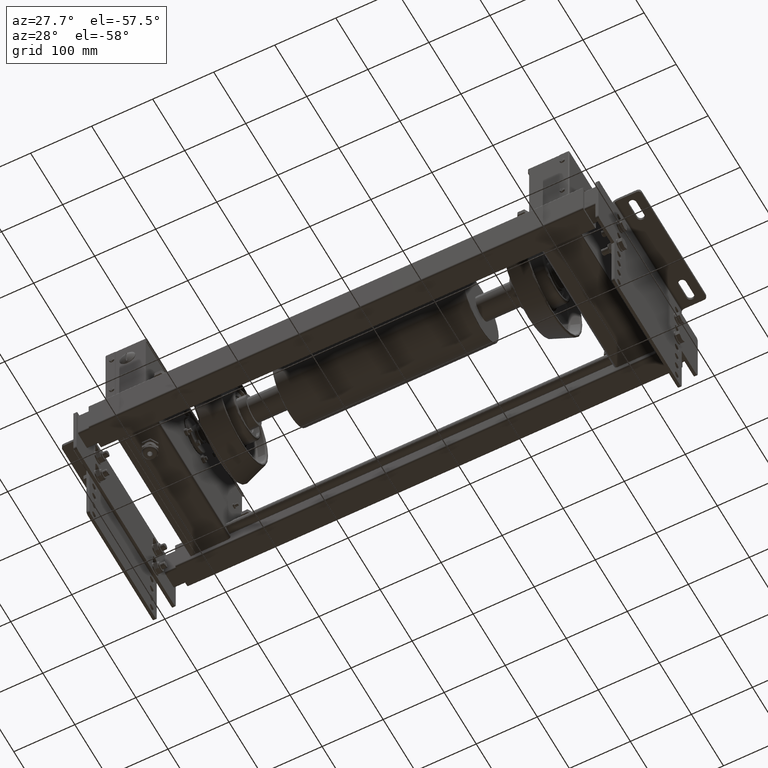
[diagram: clean part render]
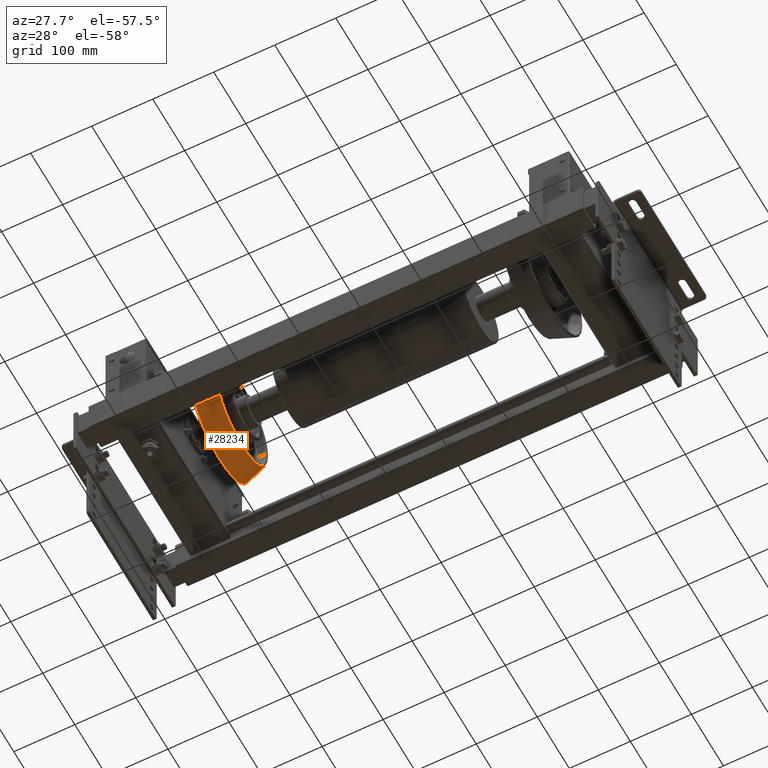
[diagram: same view with one face highlighted and labeled with its STEP entity id]
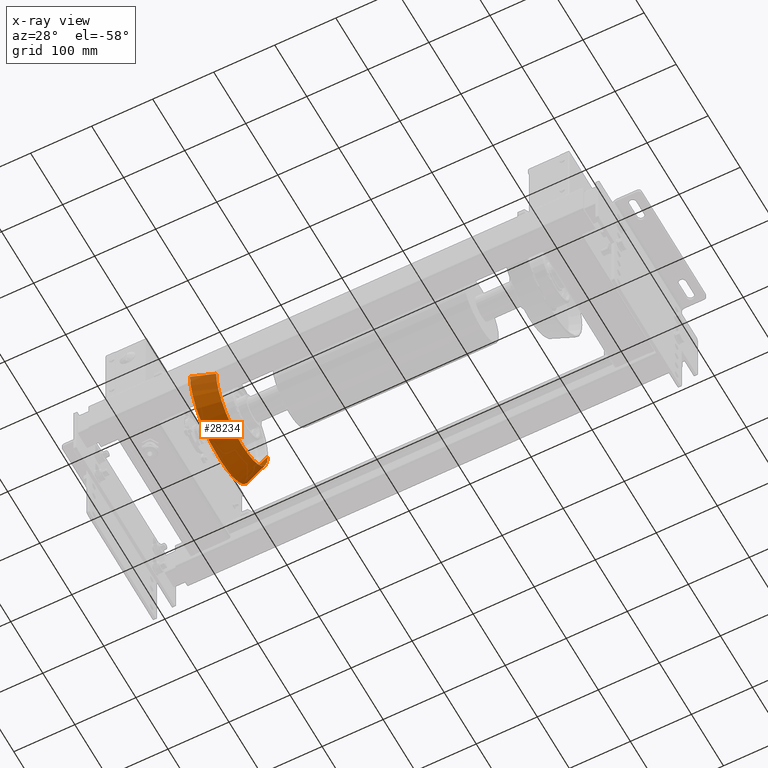
[diagram: x-ray of the same camera — body ghosted, the highlighted face saturated]
A machine part, auxiliary view. The second image highlights one B-rep face of the part: STEP entity #28234.
The next image is the same camera in x-ray: the body ghosted, the highlighted face saturated — about 13% of this face is hidden behind the body in this view.
In plain terms, the highlighted conical surface has half-angle 20 deg.
Its self-contained STEP definition (entity closure, byte-faithful):
#28051=CARTESIAN_POINT('',(-18.684040286651353,-80.478970165152404,-9.855831E-015));
#28052=VERTEX_POINT('',#28051);
#28060=CARTESIAN_POINT('',(-18.684040286651353,-9.855831E-015,80.478970165152404));
#28061=VERTEX_POINT('',#28060);
#28062=CARTESIAN_POINT('',(-18.684040286651353,0.0,0.0));
#28063=DIRECTION('',(-1.0,0.0,0.0));
#28064=DIRECTION('',(0.0,-1.0,0.0));
#28065=AXIS2_PLACEMENT_3D('',#28062,#28063,#28064);
#28066=CIRCLE('',#28065,80.478970165152404);
#28067=EDGE_CURVE('',#28052,#28061,#28066,.T.);
#28093=CARTESIAN_POINT('',(17.315959713348651,93.581898598735677,0.0));
#28094=VERTEX_POINT('',#28093);
#28095=CARTESIAN_POINT('',(-18.684040286651353,80.478970165152404,0.0));
#28096=VERTEX_POINT('',#28095);
#28097=CARTESIAN_POINT('',(17.315959713348651,93.581898598735677,0.0));
#28098=DIRECTION('',(-0.939692620785909,-0.342020143325668,0.0));
#28099=VECTOR('',#28098,38.310399809132832);
#28100=LINE('',#28097,#28099);
#28101=EDGE_CURVE('',#28094,#28096,#28100,.T.);
#28112=CARTESIAN_POINT('',(17.315959713348654,-93.581898598735677,-1.146048E-014));
#28113=VERTEX_POINT('',#28112);
#28121=CARTESIAN_POINT('',(17.315959713348654,-93.581898598735677,-1.146048E-014));
#28122=DIRECTION('',(-0.939692620785909,0.342020143325668,4.188539E-017));
#28123=VECTOR('',#28122,38.310399809132839);
#28124=LINE('',#28121,#28123);
#28125=EDGE_CURVE('',#28113,#28052,#28124,.T.);
#28161=CARTESIAN_POINT('',(17.315959713348647,-1.146048E-014,93.581898598735677));
#28162=VERTEX_POINT('',#28161);
#28170=CARTESIAN_POINT('',(17.315959713348651,0.0,0.0));
#28171=DIRECTION('',(1.0,0.0,0.0));
#28172=DIRECTION('',(0.0,-1.0,0.0));
#28173=AXIS2_PLACEMENT_3D('',#28170,#28171,#28172);
#28174=CIRCLE('',#28173,93.581898598735677);
#28175=EDGE_CURVE('',#28162,#28113,#28174,.T.);
#28188=CARTESIAN_POINT('',(17.315959713348651,0.0,0.0));
#28189=DIRECTION('',(1.0,0.0,0.0));
#28190=DIRECTION('',(0.0,-1.0,0.0));
#28191=AXIS2_PLACEMENT_3D('',#28188,#28189,#28190);
#28192=CIRCLE('',#28191,93.581898598735677);
#28193=EDGE_CURVE('',#28094,#28162,#28192,.T.);
#28215=CARTESIAN_POINT('',(-2.842171E-014,0.0,0.0));
#28216=DIRECTION('',(1.0,0.0,0.0));
#28217=DIRECTION('',(0.0,1.0,0.0));
#28218=AXIS2_PLACEMENT_3D('',#28215,#28216,#28217);
#28219=CONICAL_SURFACE('',#28218,87.279404685324039,19.999999999999979);
#28220=ORIENTED_EDGE('',*,*,#28101,.T.);
#28221=CARTESIAN_POINT('',(-18.684040286651353,0.0,0.0));
#28222=DIRECTION('',(-1.0,0.0,0.0));
#28223=DIRECTION('',(0.0,-1.0,0.0));
#28224=AXIS2_PLACEMENT_3D('',#28221,#28222,#28223);
#28225=CIRCLE('',#28224,80.478970165152404);
#28226=EDGE_CURVE('',#28061,#28096,#28225,.T.);
#28227=ORIENTED_EDGE('',*,*,#28226,.F.);
#28228=ORIENTED_EDGE('',*,*,#28067,.F.);
#28229=ORIENTED_EDGE('',*,*,#28125,.F.);
#28230=ORIENTED_EDGE('',*,*,#28175,.F.);
#28231=ORIENTED_EDGE('',*,*,#28193,.F.);
#28232=EDGE_LOOP('',(#28220,#28227,#28228,#28229,#28230,#28231));
#28233=FACE_OUTER_BOUND('',#28232,.T.);
#28234=ADVANCED_FACE('',(#28233),#28219,.T.);